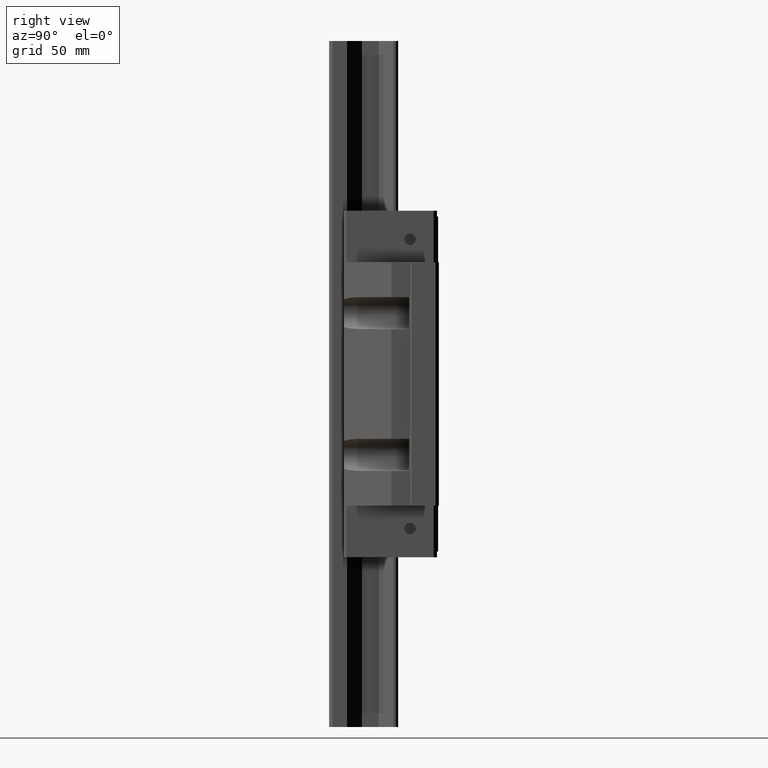
[diagram: clean part render]
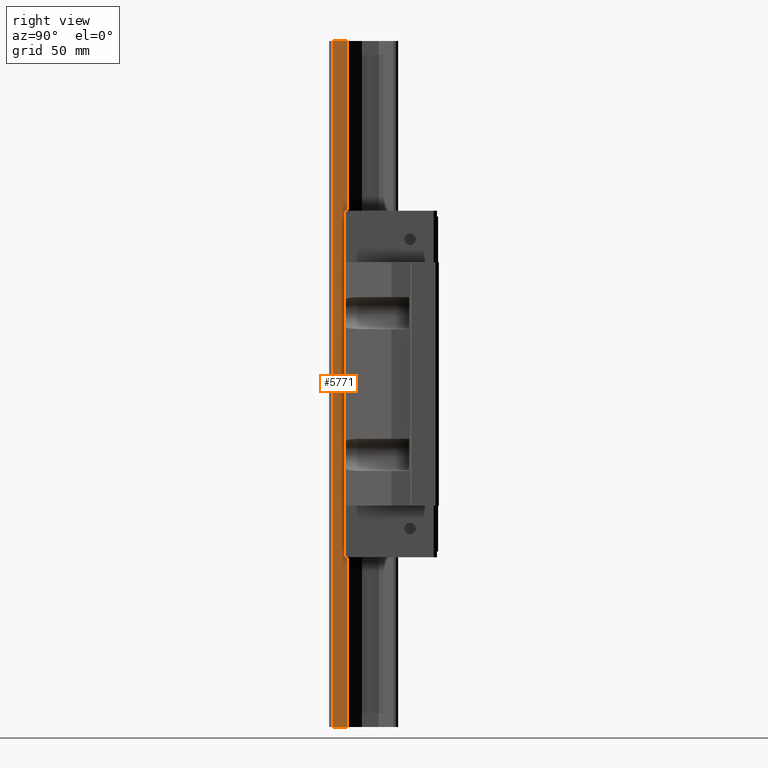
[diagram: same view with one face highlighted and labeled with its STEP entity id]
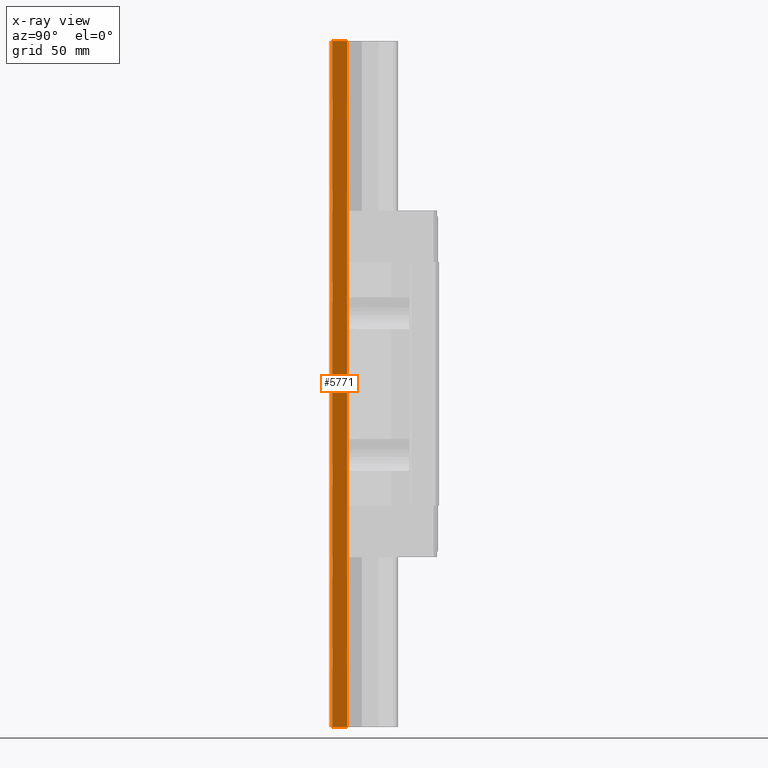
[diagram: x-ray of the same camera — body ghosted, the highlighted face saturated]
A machine part, right view. The second image highlights one B-rep face of the part: STEP entity #5771.
The next image is the same camera in x-ray: the body ghosted, the highlighted face saturated — about 0% of this face is hidden behind the body in this view.
In plain terms, the highlighted planar face has unit normal (1, 0, 0).
Its self-contained STEP definition (entity closure, byte-faithful):
#4318=DIRECTION('',(0.E0,-1.E0,0.E0));
#4319=VECTOR('',#4318,6.310000002103E0);
#4320=CARTESIAN_POINT('',(1.7E1,7.810000002103E0,-1.5E2));
#4321=LINE('',#4320,#4319);
#4322=DIRECTION('',(0.E0,0.E0,-1.E0));
#4323=VECTOR('',#4322,3.E2);
#4324=CARTESIAN_POINT('',(1.7E1,7.810000002103E0,1.5E2));
#4325=LINE('',#4324,#4323);
#4326=DIRECTION('',(0.E0,0.E0,-1.E0));
#4327=VECTOR('',#4326,3.E2);
#4328=CARTESIAN_POINT('',(1.7E1,1.5E0,1.5E2));
#4329=LINE('',#4328,#4327);
#4817=DIRECTION('',(0.E0,-1.E0,0.E0));
#4818=VECTOR('',#4817,6.310000002103E0);
#4819=CARTESIAN_POINT('',(1.7E1,7.810000002103E0,1.5E2));
#4820=LINE('',#4819,#4818);
#5240=CARTESIAN_POINT('',(1.7E1,1.5E0,-1.5E2));
#5241=VERTEX_POINT('',#5240);
#5242=CARTESIAN_POINT('',(1.7E1,7.810000002103E0,-1.5E2));
#5243=VERTEX_POINT('',#5242);
#5308=CARTESIAN_POINT('',(1.7E1,7.810000002103E0,1.5E2));
#5309=VERTEX_POINT('',#5308);
#5310=CARTESIAN_POINT('',(1.7E1,1.5E0,1.5E2));
#5311=VERTEX_POINT('',#5310);
#5758=CARTESIAN_POINT('',(1.7E1,1.5E0,-1.5E2));
#5759=DIRECTION('',(1.E0,0.E0,0.E0));
#5760=DIRECTION('',(0.E0,1.E0,0.E0));
#5761=AXIS2_PLACEMENT_3D('',#5758,#5759,#5760);
#5762=PLANE('',#5761);
#5763=ORIENTED_EDGE('',*,*,#5552,.T.);
#5765=ORIENTED_EDGE('',*,*,#5764,.F.);
#5767=ORIENTED_EDGE('',*,*,#5766,.F.);
#5768=ORIENTED_EDGE('',*,*,#5750,.T.);
#5769=EDGE_LOOP('',(#5763,#5765,#5767,#5768));
#5770=FACE_OUTER_BOUND('',#5769,.F.);
#5771=ADVANCED_FACE('',(#5770),#5762,.T.);
#5552=EDGE_CURVE('',#5243,#5241,#4321,.T.);
#5750=EDGE_CURVE('',#5309,#5243,#4325,.T.);
#5764=EDGE_CURVE('',#5311,#5241,#4329,.T.);
#5766=EDGE_CURVE('',#5309,#5311,#4820,.T.);